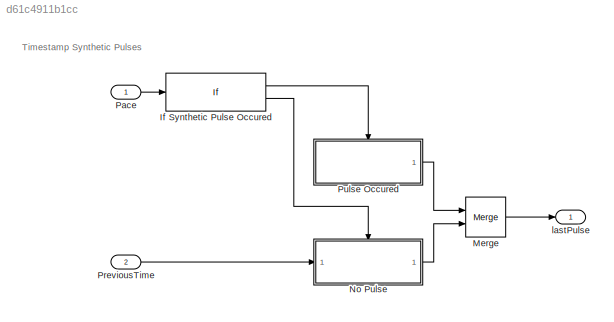
MODEL slx_d61c4911b1cc
KIND model
CONFIG AbsTol = auto
CONFIG EnableMultiTasking = on
CONFIG FixedStep = 1e-3
CONFIG MaxStep = auto
CONFIG MinStep = auto
CONFIG RelTol = 1e-3
CONFIG SampleTimeConstraint = Unconstrained
CONFIG Solver = FixedStepAuto
CONFIG SolverName = FixedStepAuto
CONFIG StartTime = 0.0
CONFIG StopTime = 10.0
BLOCK [If] If Synthetic Pulse Occured
  IfExpression = u1
  Ports = [1, 2]
BLOCK [Merge] Merge
  Ports = [2, 1]
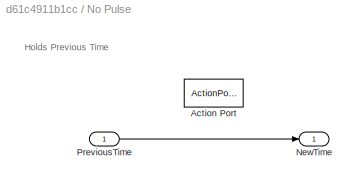
BLOCK [SubSystem] No Pulse
  Ports = [1, 1, 0, 0, 0, 0, 0, 1]
  RequestExecContextInheritance = off
  TreatAsAtomicUnit = on
BLOCK [ActionPort] No Pulse/Action Port
  ActionPortLabel = else
BLOCK [Outport] No Pulse/NewTime
BLOCK [Inport] No Pulse/PreviousTime
BLOCK [Inport] Pace
  OutDataTypeStr = boolean
BLOCK [Inport] PreviousTime
  Port = 2
  Unit = ms
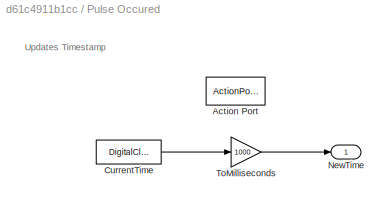
BLOCK [SubSystem] Pulse Occured
  Ports = [0, 1, 0, 0, 0, 0, 0, 1]
  RequestExecContextInheritance = off
  TreatAsAtomicUnit = on
BLOCK [ActionPort] Pulse Occured/Action Port
  ActionPortLabel = if(u1)
BLOCK [DigitalClock] Pulse Occured/CurrentTime
  SampleTime = 0.001
BLOCK [Outport] Pulse Occured/NewTime
BLOCK [Gain] Pulse Occured/ToMilliseconds
  Gain = 1000
BLOCK [Outport] lastPulse
  Unit = ms
ANNOTATION (root): Timestamp Synthetic Pulses
ANNOTATION No Pulse: Holds Previous Time
ANNOTATION Pulse Occured: Updates Timestamp
LINE If Synthetic Pulse Occured:1 -> Pulse Occured:ifaction
LINE If Synthetic Pulse Occured:2 -> No Pulse:ifaction
LINE Merge:1 -> lastPulse:1
LINE No Pulse/PreviousTime:1 -> No Pulse/NewTime:1
LINE No Pulse:1 -> Merge:2
LINE Pace:1 -> If Synthetic Pulse Occured:1
LINE PreviousTime:1 -> No Pulse:1
LINE Pulse Occured/CurrentTime:1 -> Pulse Occured/ToMilliseconds:1
LINE Pulse Occured/ToMilliseconds:1 -> Pulse Occured/NewTime:1
LINE Pulse Occured:1 -> Merge:1
